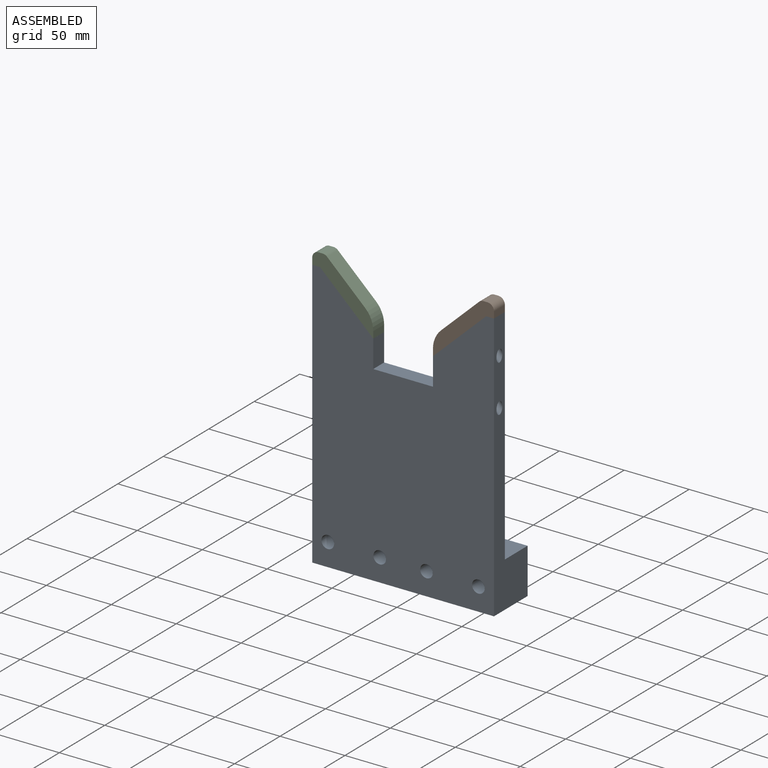
[diagram: assembled view]
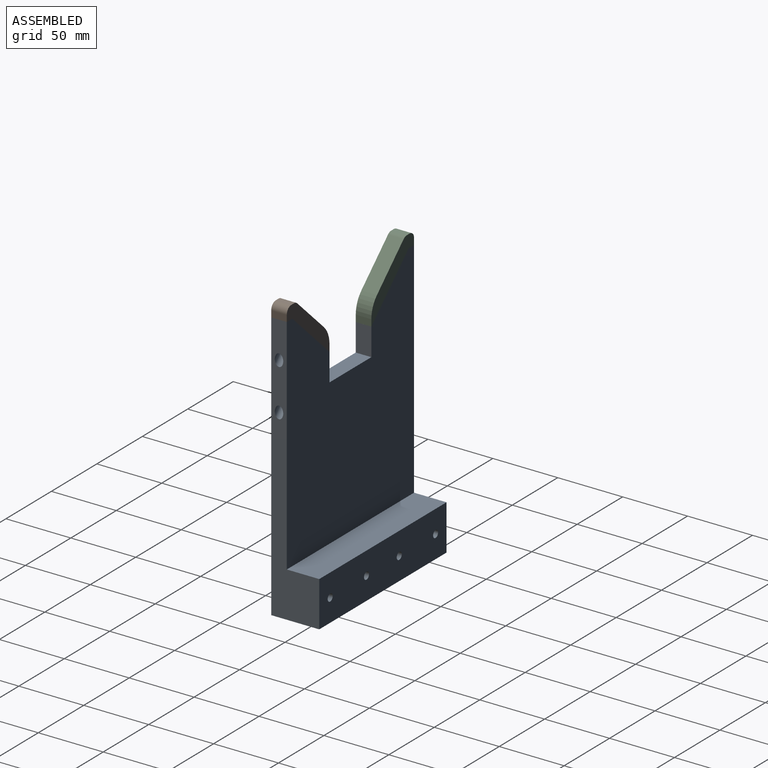
[diagram: assembled view, second angle]
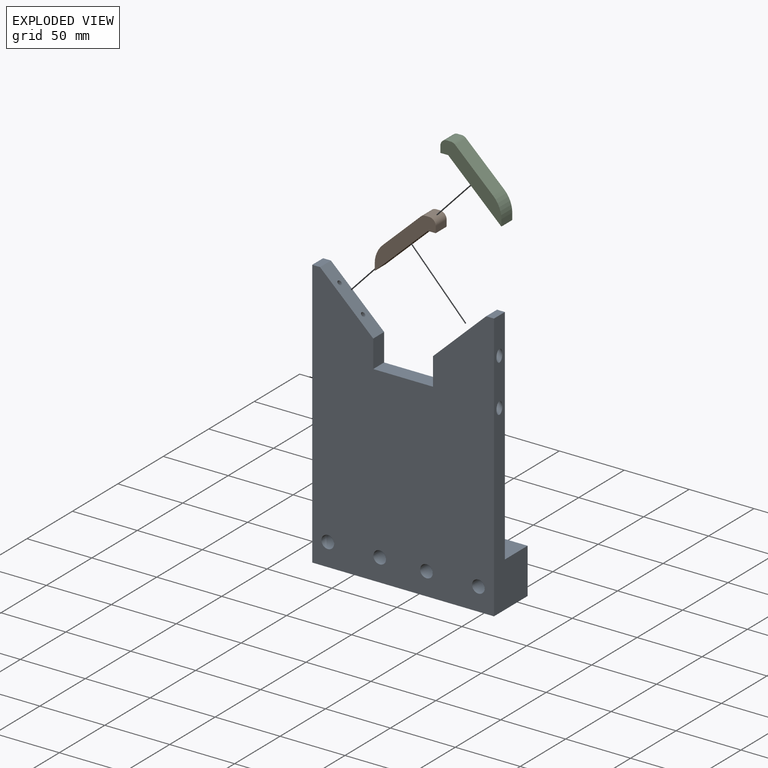
[diagram: exploded view]
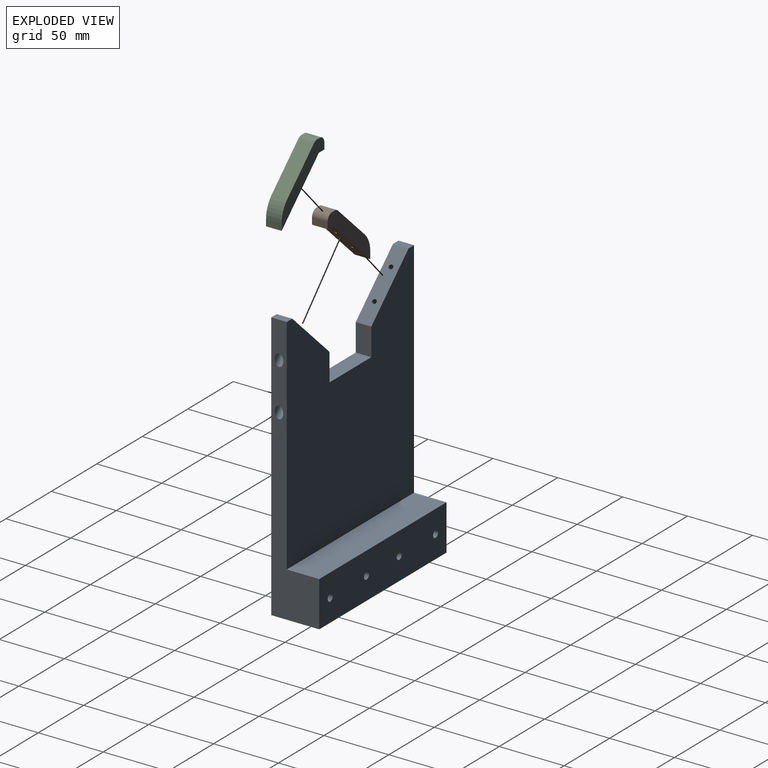
[diagram: exploded view, second angle]
ASSEMBLY  parts=3 mates=2
PART A: 38 faces, bbox 150.9x38.4x208.7 mm
  f0: plane 172.3x140mm, normal (0,1,0), area 19773.4mm2, adj f1,f3,f4,f5,f6,f8,f10,f11
  f1: plane 208.75x38.45mm, normal (-1,0,0), area 3266mm2, adj f0,f2,f7,f8,f9,f10,f28,f31
  f2: plane 207.3x140mm, normal (0,-1,0), area 24374.7mm2, adj f1,f3,f4,f5,f6,f7,f10,f11
  f3: plane 21.23x12mm, normal (1,0,0), area 254.8mm2, adj f0,f2,f6,f11
  f4: plane 207.3x37mm, normal (1,0,0), area 3266mm2, adj f0,f2,f7,f8,f9,f12,f34,f37
  f5: plane 21.23x12mm, normal (-1,0,0), area 254.8mm2, adj f0,f2,f6,f13
  f6: plane 46x12mm, normal (0,0,1), area 552mm2, adj f0,f2,f3,f5
  f7: plane 140x37mm, normal (0,0,-1), area 5180mm2, adj f1,f2,f4,f9
  f8: plane 140x25mm, normal (0,0,1), area 3500mm2, adj f0,f1,f4,f9
  f9: plane 140x35mm, normal (0,1,0), area 4805mm2, adj f1,f4,f7,f8,f14,f17,f20,f23
  f10: plane 12x6.02mm, normal (0,0,1), area 72.2mm2, adj f0,f1,f2,f11
  f11: plane 40.98x38.77mm, normal (0.69,0,0.73), area 658.8mm2, adj f0,f2,f3,f10,f26,f29
  f12: plane 12x6.02mm, normal (0,0,1), area 72.2mm2, adj f0,f2,f4,f13
  f13: plane 40.98x38.77mm, normal (-0.69,0,0.73), area 658.8mm2, adj f0,f2,f5,f12,f32,f35
  f14: cylinder r=2.75mm len=20mm, axis (0,-1,0), area 345.6mm2, adj f9,f15
  f15: plane 9.75x9.75mm, normal (0,-1,0), area 50.9mm2, adj f14,f16
  f16: cylinder r=4.88mm len=17mm, axis (0,-1,0), area 520.7mm2, adj f2,f15
  f17: cylinder r=2.75mm len=20mm, axis (0,-1,0), area 345.6mm2, adj f9,f18
  f18: plane 9.75x9.75mm, normal (0,-1,0), area 50.9mm2, adj f17,f19
  f19: cylinder r=4.88mm len=17mm, axis (0,-1,0), area 520.7mm2, adj f2,f18
  f20: cylinder r=2.75mm len=20mm, axis (0,-1,0), area 345.6mm2, adj f9,f21
  f21: plane 9.75x9.75mm, normal (0,-1,0), area 50.9mm2, adj f20,f22
  f22: cylinder r=4.88mm len=17mm, axis (0,-1,0), area 520.7mm2, adj f2,f21
  f23: cylinder r=2.75mm len=20mm, axis (0,-1,0), area 345.6mm2, adj f9,f24
  f24: plane 9.75x9.75mm, normal (0,-1,0), area 50.9mm2, adj f23,f25
  f25: cylinder r=4.88mm len=17mm, axis (0,-1,0), area 520.7mm2, adj f2,f24
  f26: cylinder r=1.7mm len=13.23mm, axis (-0.69,0,-0.73), area 160.2mm2, adj f11,f27
  f27: plane 6.5x4.72mm, normal (-0.69,0,-0.73), area 24.1mm2, adj f26,f28
  f28: cylinder r=3.25mm len=13.95mm, axis (-0.69,0,-0.73), area 196.4mm2, adj f1,f27
  f29: cylinder r=1.7mm len=13.23mm, axis (-0.69,0,-0.73), area 160.2mm2, adj f11,f30
  f30: plane 6.5x4.72mm, normal (-0.69,0,-0.73), area 24.1mm2, adj f29,f31
  f31: cylinder r=3.25mm len=33.15mm, axis (-0.69,0,-0.73), area 736.1mm2, adj f1,f30
  f32: cylinder r=1.7mm len=13.23mm, axis (0.69,0,-0.73), area 160.2mm2, adj f13,f33
  f33: plane 6.5x4.72mm, normal (0.69,0,-0.73), area 24.1mm2, adj f32,f34
  f34: cylinder r=3.25mm len=13.95mm, axis (0.69,0,-0.73), area 196.4mm2, adj f4,f33
  f35: cylinder r=1.7mm len=13.23mm, axis (0.69,0,-0.73), area 160.2mm2, adj f13,f36
  f36: plane 6.5x4.72mm, normal (0.69,0,-0.73), area 24.1mm2, adj f35,f37
  f37: cylinder r=3.25mm len=33.15mm, axis (0.69,0,-0.73), area 736.1mm2, adj f4,f36
PART B: 15 faces, bbox 47x12x48.8 mm
  f0: cylinder r=5mm len=12mm, axis (0,1,0), area 94.2mm2, adj f1,f6,f7,f8
  f1: plane 12x3.01mm, normal (0,0,1), area 36.1mm2, adj f0,f2,f6,f8
  f2: cylinder r=5mm len=12mm, axis (0,1,0), area 45.5mm2, adj f1,f3,f6,f8
  f3: plane 29.3x27.71mm, normal (0.69,0,0.73), area 484mm2, adj f2,f4,f6,f8
  f4: cylinder r=20mm len=14.53mm, axis (0,-1,0), area 195.2mm2, adj f3,f5,f6,f8
  f5: plane 12x5.15mm, normal (1,0,0), area 61.8mm2, adj f4,f6,f8,f10
  f6: plane 48.77x47mm, normal (0,-1,0), area 601.4mm2, adj f0,f1,f2,f3,f4,f5,f7,f9
  f7: plane 12x5mm, normal (-1,0,0), area 60mm2, adj f0,f6,f8,f9
  f8: plane 48.77x47mm, normal (0,1,0), area 601.4mm2, adj f0,f1,f2,f3,f4,f5,f7,f9
  f9: plane 12x6.02mm, normal (0,0,-1), area 72.2mm2, adj f6,f7,f8,f10
  f10: plane 40.98x38.77mm, normal (-0.69,0,-0.73), area 667.1mm2, adj f5,f6,f8,f9,f12,f14
  f11: cone r=0mm half-angle=59deg, axis (-0.69,0,-0.73), area 5.7mm2, adj f12
  f12: cylinder r=1.25mm len=6.8mm, axis (-0.69,0,-0.73), area 55mm2, adj f10,f11
  f13: cone r=0mm half-angle=59deg, axis (-0.69,0,-0.73), area 5.7mm2, adj f14
  f14: cylinder r=1.25mm len=6.8mm, axis (-0.69,0,-0.73), area 55mm2, adj f10,f13
PART C: same geometry as B
PLACE A t=(22.07,-34.13,43.09)mm fixed
PLACE B rot(axis=(0,0,1),180deg) t=(22.07,-46.13,43.09)mm
PLACE C t=(22.07,-34.13,43.09)mm
MATE fastened B.f12 <-> A.f32  axis (0.69,0,-0.73) through (75.15,-40.13,27.78)mm
MATE fastened A.f26 <-> C.f12  axis (0.69,0,0.73) through (-31.02,-40.13,27.78)mm
